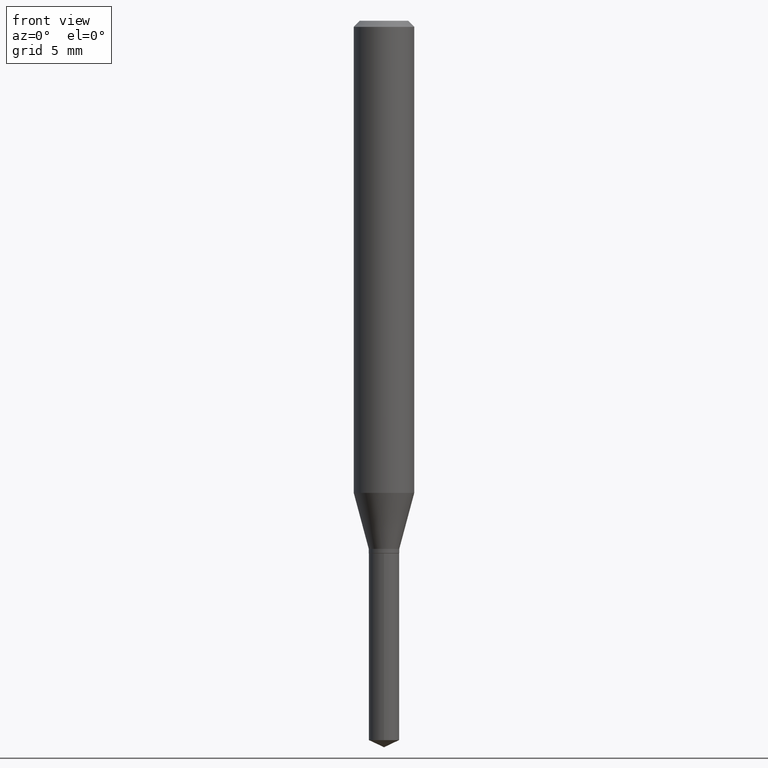
[diagram: clean part render]
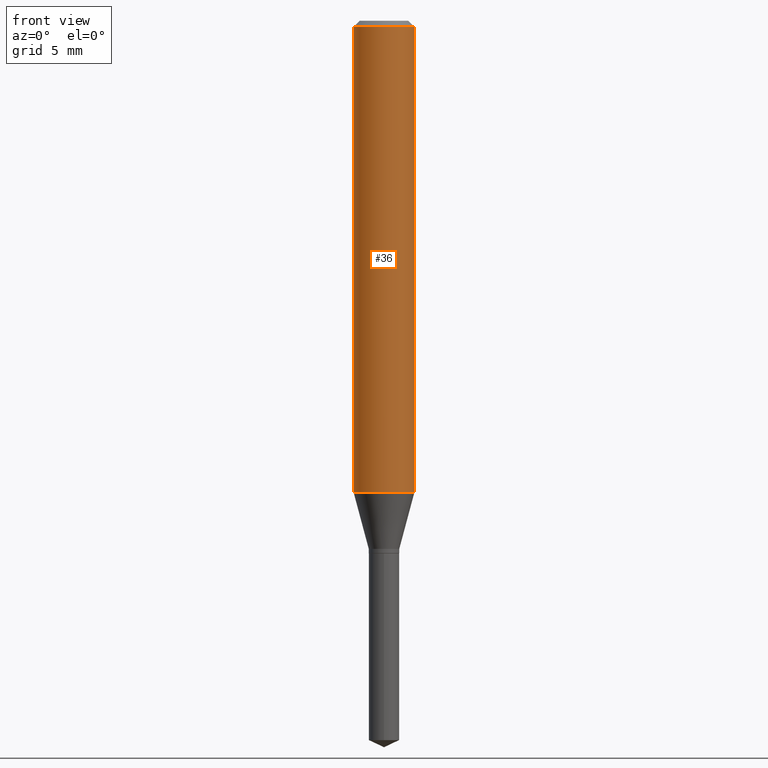
[diagram: same view with one face highlighted and labeled with its STEP entity id]
A machine part, front view. The second image highlights one B-rep face of the part: STEP entity #36.
In plain terms, the highlighted cylindrical surface (edge-blend (fillet) strip) has radius 1.5875 mm, axis along (-0, 0, 1).
Its self-contained STEP definition (entity closure, byte-faithful):
#6 = DIRECTION ( 'NONE',  ( -2.445468806185136597E-29, 3.491481338843145583E-15, 1.000000000000000000 ) ) ;
#7 = ORIENTED_EDGE ( 'NONE', *, *, #394, .T. ) ;
#14 = DIRECTION ( 'NONE',  ( 1.000000000000000000, -6.982962677686267499E-15, 4.876176775795936353E-29 ) ) ;
#30 = CARTESIAN_POINT ( 'NONE',  ( 0.06250000000000000000, -4.800786840909313294E-16, -0.01250000000000008916 ) ) ;
#35 = EDGE_LOOP ( 'NONE', ( #266, #415, #7, #48 ) ) ;
#36 = ADVANCED_FACE ( 'NONE', ( #461 ), #163, .T. ) ;
#38 = VERTEX_POINT ( 'NONE', #303 ) ;
#43 = CARTESIAN_POINT ( 'NONE',  ( 0.06250000000000005551, -4.364351673553921131E-16, 3.047610484872463023E-30 ) ) ;
#48 = ORIENTED_EDGE ( 'NONE', *, *, #174, .F. ) ;
#49 = CIRCLE ( 'NONE', #144, 0.06250000000000012490 ) ;
#64 = VECTOR ( 'NONE', #369, 39.37007874015748143 ) ;
#116 = LINE ( 'NONE', #43, #64 ) ;
#121 = VERTEX_POINT ( 'NONE', #30 ) ;
#124 = DIRECTION ( 'NONE',  ( -2.445468806185136597E-29, 3.491481338843145583E-15, 1.000000000000000000 ) ) ;
#142 = CIRCLE ( 'NONE', #405, 0.06250000000000000000 ) ;
#144 = AXIS2_PLACEMENT_3D ( 'NONE', #253, #6, #325 ) ;
#163 = CYLINDRICAL_SURFACE ( 'NONE', #388, 0.06250000000000005551 ) ;
#164 = CARTESIAN_POINT ( 'NONE',  ( 0.000000000000000000, 0.000000000000000000, 0.000000000000000000 ) ) ;
#172 = DIRECTION ( 'NONE',  ( -2.445468806185136877E-29, 3.491481338843145188E-15, 1.000000000000000000 ) ) ;
#174 = EDGE_CURVE ( 'NONE', #251, #121, #142, .T. ) ;
#177 = DIRECTION ( 'NONE',  ( -2.445468806185136597E-29, 3.491481338843145583E-15, 1.000000000000000000 ) ) ;
#180 = CARTESIAN_POINT ( 'NONE',  ( 3.056836007731442729E-31, -4.364351673553962300E-17, -0.01250000000000008916 ) ) ;
#195 = VERTEX_POINT ( 'NONE', #320 ) ;
#251 = VERTEX_POINT ( 'NONE', #282 ) ;
#253 = CARTESIAN_POINT ( 'NONE',  ( 2.383858704321651404E-29, -3.403518441750972250E-15, -0.9748064249653647373 ) ) ;
#266 = ORIENTED_EDGE ( 'NONE', *, *, #272, .F. ) ;
#272 = EDGE_CURVE ( 'NONE', #195, #251, #426, .T. ) ;
#282 = CARTESIAN_POINT ( 'NONE',  ( -0.06250000000000000000, -1.279491769393191909E-15, -0.01250000000000008916 ) ) ;
#303 = CARTESIAN_POINT ( 'NONE',  ( 0.06250000000000012490, -3.839953609106364708E-15, -0.9748064249653647373 ) ) ;
#307 = EDGE_CURVE ( 'NONE', #195, #38, #49, .T. ) ;
#320 = CARTESIAN_POINT ( 'NONE',  ( -0.06250000000000012490, -2.959429231900908845E-15, -0.9748064249653647373 ) ) ;
#325 = DIRECTION ( 'NONE',  ( 1.000000000000000000, -6.982962677686264344E-15, 0.000000000000000000 ) ) ;
#351 = CARTESIAN_POINT ( 'NONE',  ( -0.06250000000000005551, 4.440892098500630106E-16, -3.074334431409318916E-30 ) ) ;
#369 = DIRECTION ( 'NONE',  ( -2.445468806185136877E-29, 3.491481338843145188E-15, 1.000000000000000000 ) ) ;
#382 = VECTOR ( 'NONE', #172, 39.37007874015748143 ) ;
#388 = AXIS2_PLACEMENT_3D ( 'NONE', #164, #124, #14 ) ;
#394 = EDGE_CURVE ( 'NONE', #38, #121, #116, .T. ) ;
#405 = AXIS2_PLACEMENT_3D ( 'NONE', #180, #177, #440 ) ;
#415 = ORIENTED_EDGE ( 'NONE', *, *, #307, .T. ) ;
#426 = LINE ( 'NONE', #351, #382 ) ;
#440 = DIRECTION ( 'NONE',  ( 1.000000000000000000, -6.982962677686266711E-15, 0.000000000000000000 ) ) ;
#461 = FACE_OUTER_BOUND ( 'NONE', #35, .T. ) ;